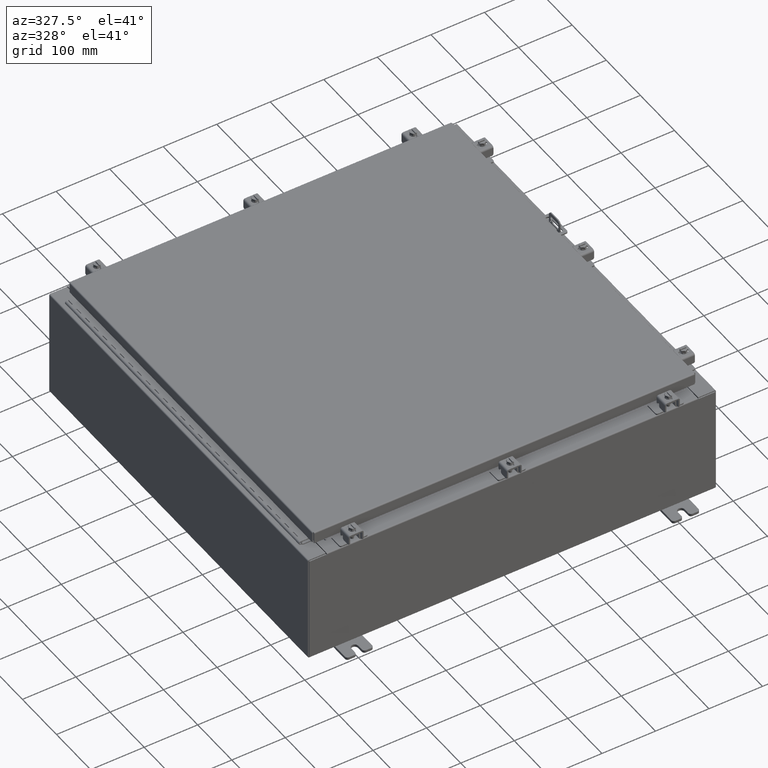
[diagram: clean part render]
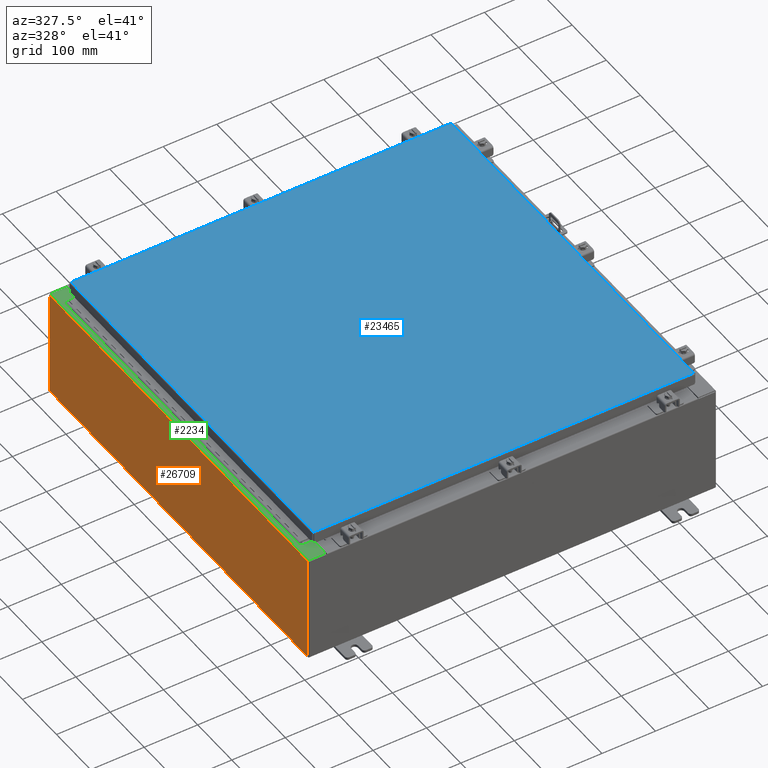
[diagram: same view with three faces highlighted in distinct colors, each labeled with its STEP entity id]
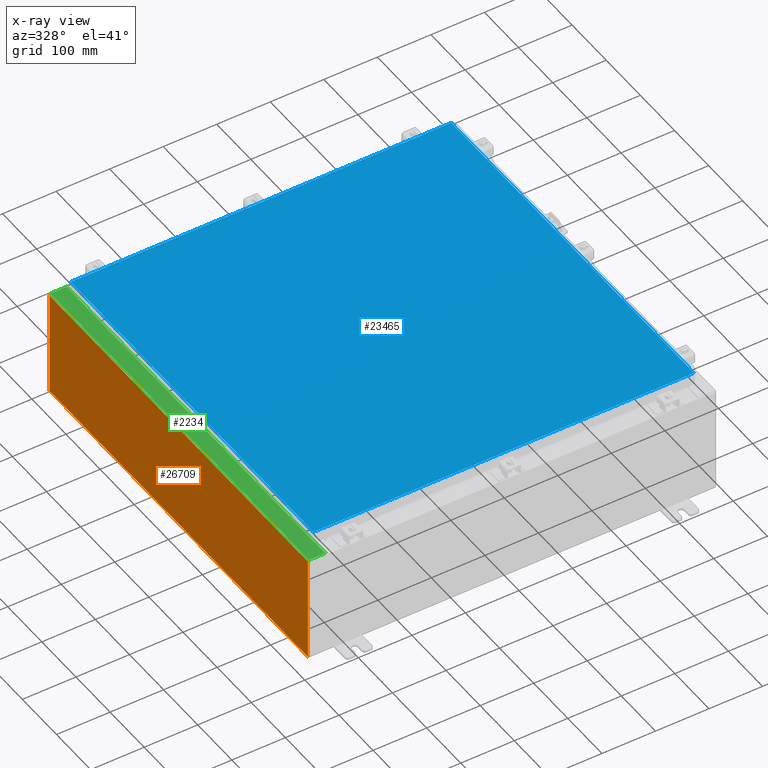
[diagram: x-ray of the same camera — body ghosted, the three highlighted faces saturated]
A machine part, auxiliary view with three faces highlighted in distinct colors.
The next image is the same camera in x-ray (body ghosted, the three faces saturated) — at least one of them is partly hidden behind the body in this view.
Their STEP definitions:

[orange] entity #26709 — the highlighted planar face has unit normal (1, 0, 0).
#1551 = VERTEX_POINT ( 'NONE', #14652 ) ;
#2764 = VERTEX_POINT ( 'NONE', #32339 ) ;
#4204 = CARTESIAN_POINT ( 'NONE',  ( -15.00000000000000000, -14.92530000000000000, -5.403936812467120800E-014 ) ) ;
#5642 = VERTEX_POINT ( 'NONE', #27835 ) ;
#6687 = DIRECTION ( 'NONE',  ( 0.0000000000000000000, 1.000000000000000000, 0.0000000000000000000 ) ) ;
#7163 = PLANE ( 'NONE',  #22801 ) ;
#7895 = VECTOR ( 'NONE', #34439, 39.37007874015748100 ) ;
#8808 = EDGE_LOOP ( 'NONE', ( #24202, #33021, #34373, #36191 ) ) ;
#9878 = CARTESIAN_POINT ( 'NONE',  ( -15.00000000000002800, -14.92530000000000000, 7.837599999999999200 ) ) ;
#10208 = DIRECTION ( 'NONE',  ( 3.584876173029202900E-015, 0.0000000000000000000, -1.000000000000000000 ) ) ;
#10224 = EDGE_CURVE ( 'NONE', #2764, #1551, #15906, .T. ) ;
#12333 = CARTESIAN_POINT ( 'NONE',  ( -15.00000000000000000, 14.92530000000000000, 0.01299999999999983500 ) ) ;
#12370 = VECTOR ( 'NONE', #20368, 39.37007874015748100 ) ;
#12677 = EDGE_CURVE ( 'NONE', #1551, #5642, #15300, .T. ) ;
#14652 = CARTESIAN_POINT ( 'NONE',  ( -15.00000000000002800, -14.92530000000000000, 7.837599999999999200 ) ) ;
#15300 = LINE ( 'NONE', #9878, #22368 ) ;
#15906 = LINE ( 'NONE', #4204, #7895 ) ;
#17529 = EDGE_CURVE ( 'NONE', #2764, #21702, #35493, .T. ) ;
#18354 = DIRECTION ( 'NONE',  ( 3.584876173029202900E-015, 0.0000000000000000000, -1.000000000000000000 ) ) ;
#19225 = LINE ( 'NONE', #21376, #34342 ) ;
#20368 = DIRECTION ( 'NONE',  ( -0.0000000000000000000, 1.000000000000000000, -0.0000000000000000000 ) ) ;
#21376 = CARTESIAN_POINT ( 'NONE',  ( -15.00000000000000000, 14.92530000000000000, -5.403936812467120800E-014 ) ) ;
#21702 = VERTEX_POINT ( 'NONE', #12333 ) ;
#22178 = EDGE_CURVE ( 'NONE', #5642, #21702, #19225, .T. ) ;
#22183 = CARTESIAN_POINT ( 'NONE',  ( -15.00000000000000000, 0.0000000000000000000, -5.403936812467120800E-014 ) ) ;
#22368 = VECTOR ( 'NONE', #6687, 39.37007874015748100 ) ;
#22801 = AXIS2_PLACEMENT_3D ( 'NONE', #22183, #28293, #10208 ) ;
#24202 = ORIENTED_EDGE ( 'NONE', *, *, #12677, .T. ) ;
#26709 = ADVANCED_FACE ( 'NONE', ( #32778 ), #7163, .F. ) ;
#27835 = CARTESIAN_POINT ( 'NONE',  ( -15.00000000000002800, 14.92530000000000000, 7.837599999999999200 ) ) ;
#28293 = DIRECTION ( 'NONE',  ( 1.000000000000000000, 0.0000000000000000000, 3.584876173029202900E-015 ) ) ;
#32339 = CARTESIAN_POINT ( 'NONE',  ( -15.00000000000000000, -14.92530000000000000, 0.01299999999999985200 ) ) ;
#32778 = FACE_OUTER_BOUND ( 'NONE', #8808, .T. ) ;
#33021 = ORIENTED_EDGE ( 'NONE', *, *, #22178, .T. ) ;
#34342 = VECTOR ( 'NONE', #18354, 39.37007874015748100 ) ;
#34373 = ORIENTED_EDGE ( 'NONE', *, *, #17529, .F. ) ;
#34439 = DIRECTION ( 'NONE',  ( -3.584876173029202900E-015, 0.0000000000000000000, 1.000000000000000000 ) ) ;
#35411 = CARTESIAN_POINT ( 'NONE',  ( -15.00000000000000000, 14.92530000000000000, 0.01299999999999985200 ) ) ;
#35493 = LINE ( 'NONE', #35411, #12370 ) ;
#36191 = ORIENTED_EDGE ( 'NONE', *, *, #10224, .T. ) ;

[blue] entity #23465 — the highlighted planar face has unit normal (0, 0, -1).
#143 = VECTOR ( 'NONE', #3015, 39.37007874015748100 ) ;
#284 = ORIENTED_EDGE ( 'NONE', *, *, #29622, .T. ) ;
#591 = VERTEX_POINT ( 'NONE', #33729 ) ;
#2503 = DIRECTION ( 'NONE',  ( 0.0000000000000000000, 0.0000000000000000000, -1.000000000000000000 ) ) ;
#2539 = VERTEX_POINT ( 'NONE', #31430 ) ;
#3015 = DIRECTION ( 'NONE',  ( 0.0000000000000000000, 1.000000000000000000, 0.0000000000000000000 ) ) ;
#3878 = ORIENTED_EDGE ( 'NONE', *, *, #33086, .T. ) ;
#4126 = VECTOR ( 'NONE', #12674, 39.37007874015748100 ) ;
#5059 = ORIENTED_EDGE ( 'NONE', *, *, #32446, .T. ) ;
#5561 = AXIS2_PLACEMENT_3D ( 'NONE', #38646, #2503, #23638 ) ;
#6427 = VECTOR ( 'NONE', #15187, 39.37007874015748100 ) ;
#8381 = LINE ( 'NONE', #33313, #31525 ) ;
#9131 = LINE ( 'NONE', #27184, #143 ) ;
#9625 = CARTESIAN_POINT ( 'NONE',  ( -13.99029999999999800, 14.00629999999999600, 0.0000000000000000000 ) ) ;
#12674 = DIRECTION ( 'NONE',  ( 0.0000000000000000000, -1.000000000000000000, 0.0000000000000000000 ) ) ;
#15187 = DIRECTION ( 'NONE',  ( 1.000000000000000000, -0.0000000000000000000, -0.0000000000000000000 ) ) ;
#17566 = PLANE ( 'NONE',  #5561 ) ;
#19767 = VERTEX_POINT ( 'NONE', #27495 ) ;
#22455 = LINE ( 'NONE', #33277, #6427 ) ;
#23465 = ADVANCED_FACE ( 'NONE', ( #32965 ), #17566, .F. ) ;
#23638 = DIRECTION ( 'NONE',  ( -1.000000000000000000, 0.0000000000000000000, -0.0000000000000000000 ) ) ;
#24404 = EDGE_CURVE ( 'NONE', #591, #35681, #28231, .T. ) ;
#25639 = CARTESIAN_POINT ( 'NONE',  ( -13.99029999999999600, -14.00630000000000300, 3.278217592397115900E-015 ) ) ;
#25780 = EDGE_LOOP ( 'NONE', ( #3878, #284, #5059, #33379 ) ) ;
#27184 = CARTESIAN_POINT ( 'NONE',  ( 13.99030000000000100, -14.00630000000000300, 0.0000000000000000000 ) ) ;
#27495 = CARTESIAN_POINT ( 'NONE',  ( 13.99030000000000100, -14.00630000000000300, 0.0000000000000000000 ) ) ;
#28231 = LINE ( 'NONE', #9625, #4126 ) ;
#29622 = EDGE_CURVE ( 'NONE', #19767, #2539, #9131, .T. ) ;
#31430 = CARTESIAN_POINT ( 'NONE',  ( 13.99030000000000100, 14.00629999999999400, 1.092739197465705300E-015 ) ) ;
#31525 = VECTOR ( 'NONE', #33071, 39.37007874015748100 ) ;
#32446 = EDGE_CURVE ( 'NONE', #2539, #591, #8381, .T. ) ;
#32965 = FACE_OUTER_BOUND ( 'NONE', #25780, .T. ) ;
#33071 = DIRECTION ( 'NONE',  ( -1.000000000000000000, -0.0000000000000000000, -0.0000000000000000000 ) ) ;
#33086 = EDGE_CURVE ( 'NONE', #35681, #19767, #22455, .T. ) ;
#33277 = CARTESIAN_POINT ( 'NONE',  ( -13.99029999999999200, -14.00630000000000300, 3.278217592397115900E-015 ) ) ;
#33313 = CARTESIAN_POINT ( 'NONE',  ( 13.99030000000000100, 14.00629999999999400, 1.092739197465705300E-015 ) ) ;
#33379 = ORIENTED_EDGE ( 'NONE', *, *, #24404, .T. ) ;
#33729 = CARTESIAN_POINT ( 'NONE',  ( -13.99029999999999800, 14.00629999999999600, 0.0000000000000000000 ) ) ;
#35681 = VERTEX_POINT ( 'NONE', #25639 ) ;
#38646 = CARTESIAN_POINT ( 'NONE',  ( 0.0000000000000000000, 0.0000000000000000000, 0.0000000000000000000 ) ) ;

[green] entity #2234 — the highlighted planar face has unit normal (0, 0, -1).
#730 = VERTEX_POINT ( 'NONE', #28192 ) ;
#887 = EDGE_CURVE ( 'NONE', #25245, #20298, #30404, .T. ) ;
#1411 = VERTEX_POINT ( 'NONE', #7272 ) ;
#1420 = VECTOR ( 'NONE', #24928, 39.37007874015748100 ) ;
#1611 = ORIENTED_EDGE ( 'NONE', *, *, #25095, .F. ) ;
#2205 = DIRECTION ( 'NONE',  ( 1.000000000000000000, 0.0000000000000000000, -2.170286390200049500E-014 ) ) ;
#2234 = ADVANCED_FACE ( 'NONE', ( #25637 ), #2803, .F. ) ;
#2803 = PLANE ( 'NONE',  #31435 ) ;
#2980 = DIRECTION ( 'NONE',  ( 1.000000000000000000, 0.0000000000000000000, 0.0000000000000000000 ) ) ;
#3261 = ORIENTED_EDGE ( 'NONE', *, *, #3946, .T. ) ;
#3946 = EDGE_CURVE ( 'NONE', #10735, #730, #18432, .T. ) ;
#4039 = VERTEX_POINT ( 'NONE', #36870 ) ;
#4225 = CARTESIAN_POINT ( 'NONE',  ( -13.69970000000003000, 13.63109999999999800, 7.925300000000009800 ) ) ;
#4437 = ORIENTED_EDGE ( 'NONE', *, *, #20250, .F. ) ;
#4659 = ORIENTED_EDGE ( 'NONE', *, *, #37942, .T. ) ;
#4843 = ORIENTED_EDGE ( 'NONE', *, *, #16339, .F. ) ;
#5179 = DIRECTION ( 'NONE',  ( -1.000000000000000000, 0.0000000000000000000, 0.0000000000000000000 ) ) ;
#5641 = EDGE_CURVE ( 'NONE', #4039, #22585, #35379, .T. ) ;
#6732 = DIRECTION ( 'NONE',  ( 0.0000000000000000000, 1.000000000000000000, 0.0000000000000000000 ) ) ;
#6803 = CARTESIAN_POINT ( 'NONE',  ( -13.75005000000002800, 13.59374999999999800, 7.925300000000010700 ) ) ;
#6952 = DIRECTION ( 'NONE',  ( -0.0000000000000000000, 1.000000000000000000, -0.0000000000000000000 ) ) ;
#7115 = CARTESIAN_POINT ( 'NONE',  ( -13.75005000000002800, 13.59374999999999800, 7.925300000000007100 ) ) ;
#7123 = VECTOR ( 'NONE', #7252, 39.37007874015748100 ) ;
#7179 = ORIENTED_EDGE ( 'NONE', *, *, #14729, .F. ) ;
#7216 = CARTESIAN_POINT ( 'NONE',  ( -14.91230000000002900, 14.92530000000000000, 7.925300000000000000 ) ) ;
#7252 = DIRECTION ( 'NONE',  ( -1.000000000000000000, -4.340572780400098900E-014, 2.170286390200049500E-014 ) ) ;
#7272 = CARTESIAN_POINT ( 'NONE',  ( -13.75005000000002800, -13.63109999999999800, 7.925300000000007100 ) ) ;
#8073 = LINE ( 'NONE', #4225, #7123 ) ;
#8498 = LINE ( 'NONE', #7216, #16512 ) ;
#9603 = CARTESIAN_POINT ( 'NONE',  ( -5.679009539024888300E-014, 14.92530000000000000, 7.925300000000105700 ) ) ;
#9743 = DIRECTION ( 'NONE',  ( -1.000000000000000000, 0.0000000000000000000, -7.132762385546384700E-015 ) ) ;
#10644 = CARTESIAN_POINT ( 'NONE',  ( -13.75005000000002800, -13.59375000000000000, 7.925300000000007100 ) ) ;
#10735 = VERTEX_POINT ( 'NONE', #30952 ) ;
#11452 = CIRCLE ( 'NONE', #37616, 0.01867499999999949400 ) ;
#12693 = CARTESIAN_POINT ( 'NONE',  ( -13.69970000000003000, 0.0000000000000000000, 7.925300000000008900 ) ) ;
#13899 = CARTESIAN_POINT ( 'NONE',  ( -13.75005000000002800, 13.61242499999999600, 7.925300000000010700 ) ) ;
#14274 = CARTESIAN_POINT ( 'NONE',  ( -13.69970000000003000, 13.63109999999999800, 7.925300000000008900 ) ) ;
#14729 = EDGE_CURVE ( 'NONE', #38340, #1411, #11452, .T. ) ;
#14941 = DIRECTION ( 'NONE',  ( -1.000000000000000000, 0.0000000000000000000, -7.132762385546384700E-015 ) ) ;
#15545 = DIRECTION ( 'NONE',  ( 0.0000000000000000000, 1.000000000000000000, 0.0000000000000000000 ) ) ;
#15620 = CARTESIAN_POINT ( 'NONE',  ( -13.71270000000003000, -13.59375000000000000, 7.925300000000010700 ) ) ;
#15669 = EDGE_CURVE ( 'NONE', #32870, #25245, #8073, .T. ) ;
#15821 = LINE ( 'NONE', #12693, #31895 ) ;
#16075 = ORIENTED_EDGE ( 'NONE', *, *, #15669, .F. ) ;
#16339 = EDGE_CURVE ( 'NONE', #37046, #22585, #8498, .T. ) ;
#16512 = VECTOR ( 'NONE', #6952, 39.37007874015748100 ) ;
#16948 = DIRECTION ( 'NONE',  ( 1.000000000000000000, 0.0000000000000000000, 0.0000000000000000000 ) ) ;
#17445 = VECTOR ( 'NONE', #9743, 39.37007874015748100 ) ;
#17494 = LINE ( 'NONE', #27845, #1420 ) ;
#17798 = LINE ( 'NONE', #35338, #31976 ) ;
#18432 = LINE ( 'NONE', #33633, #19399 ) ;
#19399 = VECTOR ( 'NONE', #15545, 39.37007874015748100 ) ;
#20250 = EDGE_CURVE ( 'NONE', #24860, #23080, #17494, .T. ) ;
#20298 = VERTEX_POINT ( 'NONE', #7115 ) ;
#20435 = EDGE_CURVE ( 'NONE', #37046, #10735, #26932, .T. ) ;
#20634 = ORIENTED_EDGE ( 'NONE', *, *, #5641, .T. ) ;
#20693 = CARTESIAN_POINT ( 'NONE',  ( -13.71270000000003000, 13.59374999999999800, 7.925300000000010700 ) ) ;
#21068 = DIRECTION ( 'NONE',  ( -7.132762385546384700E-015, -0.0000000000000000000, 1.000000000000000000 ) ) ;
#21542 = VECTOR ( 'NONE', #21833, 39.37007874015748100 ) ;
#21833 = DIRECTION ( 'NONE',  ( 1.000000000000000000, 0.0000000000000000000, 0.0000000000000000000 ) ) ;
#22585 = VERTEX_POINT ( 'NONE', #26401 ) ;
#22889 = DIRECTION ( 'NONE',  ( 1.000000000000000000, -0.0000000000000000000, 7.132762385546384700E-015 ) ) ;
#23080 = VERTEX_POINT ( 'NONE', #15620 ) ;
#23224 = CARTESIAN_POINT ( 'NONE',  ( -13.71270000000003000, -13.59375000000000000, 7.925300000000010700 ) ) ;
#23427 = LINE ( 'NONE', #6803, #21542 ) ;
#23504 = AXIS2_PLACEMENT_3D ( 'NONE', #13899, #35018, #16948 ) ;
#24781 = EDGE_CURVE ( 'NONE', #1411, #730, #17798, .T. ) ;
#24797 = LINE ( 'NONE', #23224, #32857 ) ;
#24860 = VERTEX_POINT ( 'NONE', #20693 ) ;
#24928 = DIRECTION ( 'NONE',  ( -0.0000000000000000000, -1.000000000000000000, -0.0000000000000000000 ) ) ;
#25095 = EDGE_CURVE ( 'NONE', #20298, #24860, #23427, .T. ) ;
#25245 = VERTEX_POINT ( 'NONE', #28597 ) ;
#25637 = FACE_OUTER_BOUND ( 'NONE', #31886, .T. ) ;
#25985 = ORIENTED_EDGE ( 'NONE', *, *, #887, .F. ) ;
#26364 = CARTESIAN_POINT ( 'NONE',  ( -14.91230000000002900, -14.92530000000000000, 7.925300000000000000 ) ) ;
#26401 = CARTESIAN_POINT ( 'NONE',  ( -14.91230000000002900, 14.92530000000000000, 7.925300000000000000 ) ) ;
#26932 = LINE ( 'NONE', #37926, #34945 ) ;
#26971 = CARTESIAN_POINT ( 'NONE',  ( -5.679009539024888300E-014, 0.0000000000000000000, 7.925300000000105700 ) ) ;
#27685 = EDGE_CURVE ( 'NONE', #23080, #38340, #24797, .T. ) ;
#27845 = CARTESIAN_POINT ( 'NONE',  ( -13.71270000000003000, 13.59375000000000000, 7.925300000000010700 ) ) ;
#28192 = CARTESIAN_POINT ( 'NONE',  ( -13.69970000000003000, -13.63110000000000200, 7.925300000000008900 ) ) ;
#28597 = CARTESIAN_POINT ( 'NONE',  ( -13.75005000000002800, 13.63109999999999600, 7.925300000000007100 ) ) ;
#30404 = CIRCLE ( 'NONE', #23504, 0.01867499999999949400 ) ;
#30509 = ORIENTED_EDGE ( 'NONE', *, *, #24781, .F. ) ;
#30741 = ORIENTED_EDGE ( 'NONE', *, *, #27685, .F. ) ;
#30952 = CARTESIAN_POINT ( 'NONE',  ( -13.69970000000003000, -14.92530000000000000, 7.925300000000008900 ) ) ;
#31435 = AXIS2_PLACEMENT_3D ( 'NONE', #26971, #33051, #14941 ) ;
#31886 = EDGE_LOOP ( 'NONE', ( #16075, #4659, #20634, #4843, #37417, #3261, #30509, #7179, #30741, #4437, #1611, #25985 ) ) ;
#31895 = VECTOR ( 'NONE', #6732, 39.37007874015748100 ) ;
#31976 = VECTOR ( 'NONE', #2205, 39.37007874015748100 ) ;
#32857 = VECTOR ( 'NONE', #5179, 39.37007874015748100 ) ;
#32870 = VERTEX_POINT ( 'NONE', #14274 ) ;
#33051 = DIRECTION ( 'NONE',  ( 7.132762385546384700E-015, 0.0000000000000000000, -1.000000000000000000 ) ) ;
#33633 = CARTESIAN_POINT ( 'NONE',  ( -13.69970000000003000, 0.0000000000000000000, 7.925300000000008900 ) ) ;
#34945 = VECTOR ( 'NONE', #22889, 39.37007874015748100 ) ;
#35018 = DIRECTION ( 'NONE',  ( -7.132762385546384700E-015, -0.0000000000000000000, 1.000000000000000000 ) ) ;
#35338 = CARTESIAN_POINT ( 'NONE',  ( -13.75005000000002800, -13.63109999999999800, 7.925300000000010700 ) ) ;
#35379 = LINE ( 'NONE', #9603, #17445 ) ;
#36870 = CARTESIAN_POINT ( 'NONE',  ( -13.69970000000003000, 14.92530000000000000, 7.925300000000008900 ) ) ;
#37046 = VERTEX_POINT ( 'NONE', #26364 ) ;
#37417 = ORIENTED_EDGE ( 'NONE', *, *, #20435, .T. ) ;
#37616 = AXIS2_PLACEMENT_3D ( 'NONE', #39096, #21068, #2980 ) ;
#37926 = CARTESIAN_POINT ( 'NONE',  ( -5.679009539024888300E-014, -14.92530000000000000, 7.925300000000105700 ) ) ;
#37942 = EDGE_CURVE ( 'NONE', #32870, #4039, #15821, .T. ) ;
#38340 = VERTEX_POINT ( 'NONE', #10644 ) ;
#39096 = CARTESIAN_POINT ( 'NONE',  ( -13.75005000000002800, -13.61242500000000000, 7.925300000000010700 ) ) ;